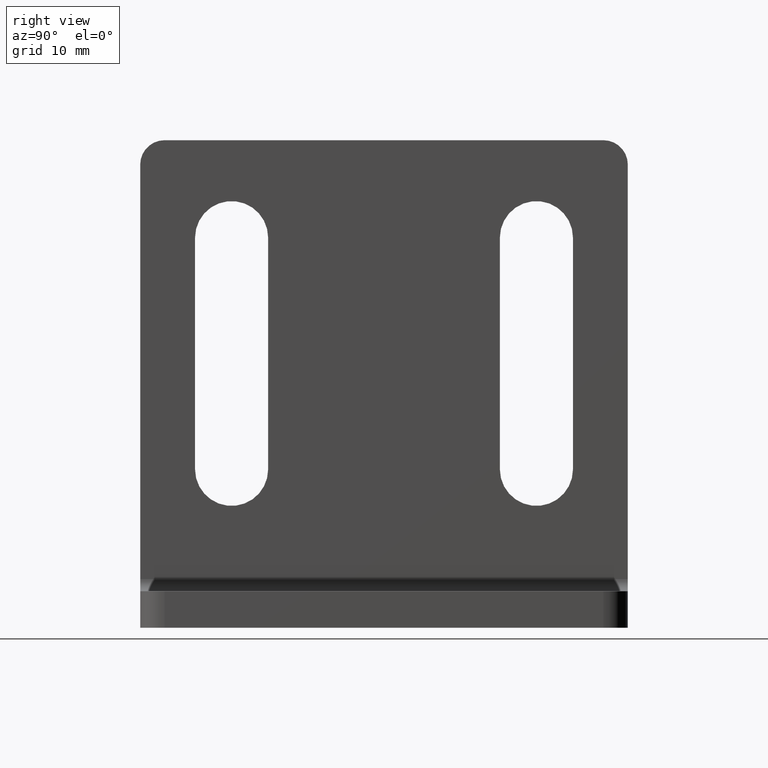
[diagram: clean part render]
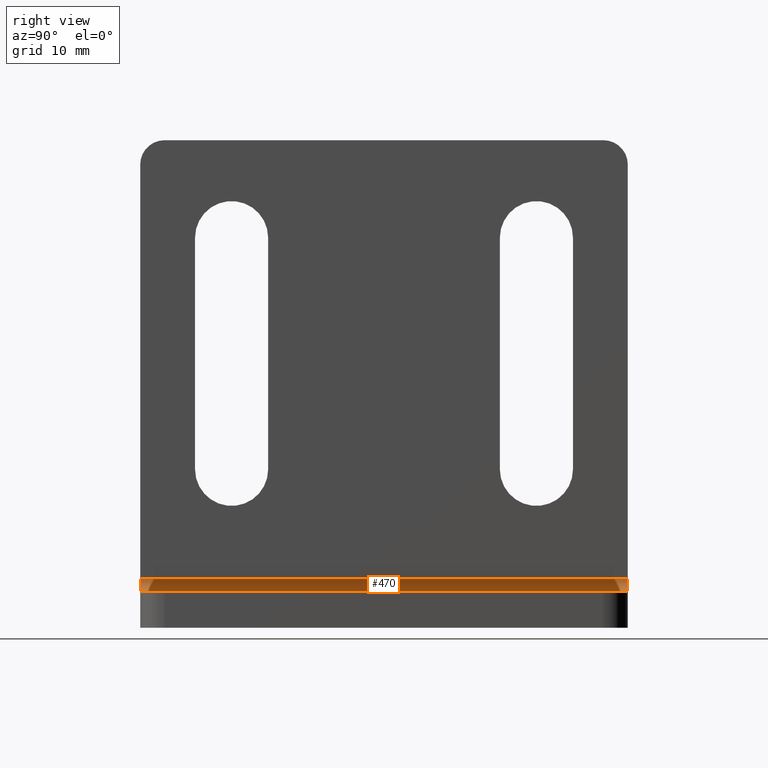
[diagram: same view with one face highlighted and labeled with its STEP entity id]
A machine part, right view. The second image highlights one B-rep face of the part: STEP entity #470.
In plain terms, the highlighted cylindrical surface (edge-blend (fillet) strip) has radius 1 mm, axis along (0, 1, 0).
Its self-contained STEP definition (entity closure, byte-faithful):
#24=LINE('',#704,#64);
#41=LINE('',#755,#81);
#64=VECTOR('',#560,40.);
#81=VECTOR('',#601,40.);
#140=FACE_OUTER_BOUND('',#174,.T.);
#174=EDGE_LOOP('',(#431,#432,#433,#434));
#196=CIRCLE('',#503,1.);
#198=CIRCLE('',#506,1.);
#217=VERTEX_POINT('',#700);
#219=VERTEX_POINT('',#703);
#240=VERTEX_POINT('',#752);
#241=VERTEX_POINT('',#754);
#262=EDGE_CURVE('',#217,#219,#24,.T.);
#287=EDGE_CURVE('',#240,#241,#41,.T.);
#293=EDGE_CURVE('',#219,#240,#196,.T.);
#297=EDGE_CURVE('',#241,#217,#198,.T.);
#431=ORIENTED_EDGE('',*,*,#293,.F.);
#432=ORIENTED_EDGE('',*,*,#262,.F.);
#433=ORIENTED_EDGE('',*,*,#297,.F.);
#434=ORIENTED_EDGE('',*,*,#287,.F.);
#446=CYLINDRICAL_SURFACE('',#520,1.);
#470=ADVANCED_FACE('',(#140),#446,.F.);
#503=AXIS2_PLACEMENT_3D('',#763,#612,#613);
#506=AXIS2_PLACEMENT_3D('',#768,#620,#621);
#520=AXIS2_PLACEMENT_3D('',#791,#657,#658);
#560=DIRECTION('',(0.,1.,0.));
#601=DIRECTION('',(0.,-1.,0.));
#612=DIRECTION('center_axis',(0.,-1.,0.));
#613=DIRECTION('ref_axis',(0.,0.,-1.));
#620=DIRECTION('center_axis',(0.,1.,0.));
#621=DIRECTION('ref_axis',(0.,0.,-1.));
#657=DIRECTION('center_axis',(0.,1.,0.));
#658=DIRECTION('ref_axis',(0.,0.,1.));
#700=CARTESIAN_POINT('',(-17.,-20.,4.00000000000001));
#703=CARTESIAN_POINT('',(-17.,20.,4.00000000000001));
#704=CARTESIAN_POINT('',(-17.,-20.,4.00000000000001));
#752=CARTESIAN_POINT('',(-16.,20.,3.00000000000001));
#754=CARTESIAN_POINT('',(-16.,-20.,3.00000000000001));
#755=CARTESIAN_POINT('',(-16.,20.,3.00000000000001));
#763=CARTESIAN_POINT('Origin',(-16.,20.,4.00000000000001));
#768=CARTESIAN_POINT('Origin',(-16.,-20.,4.00000000000001));
#791=CARTESIAN_POINT('Origin',(-16.,-20.00000001,4.00000000000001));